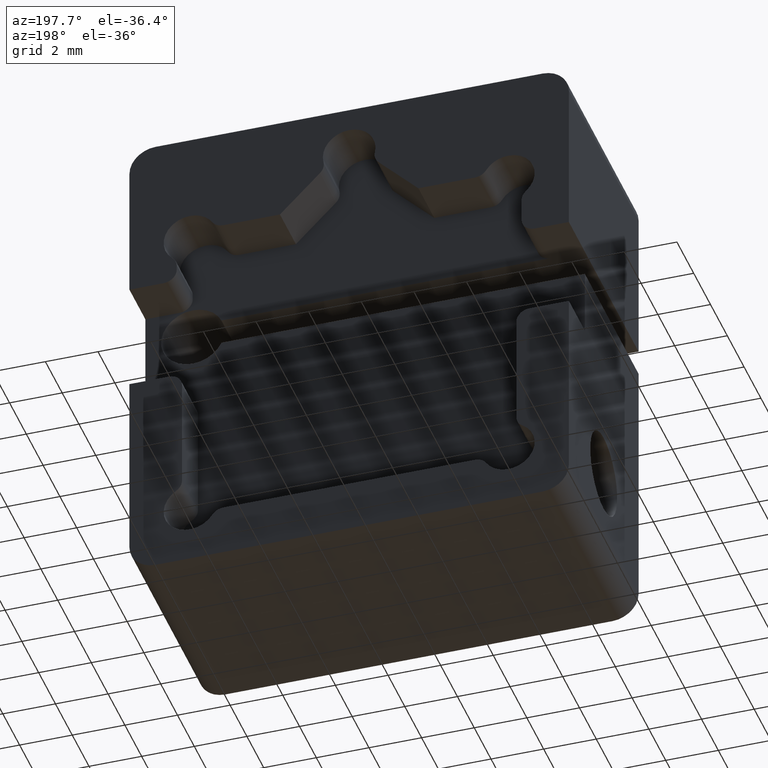
[diagram: clean part render]
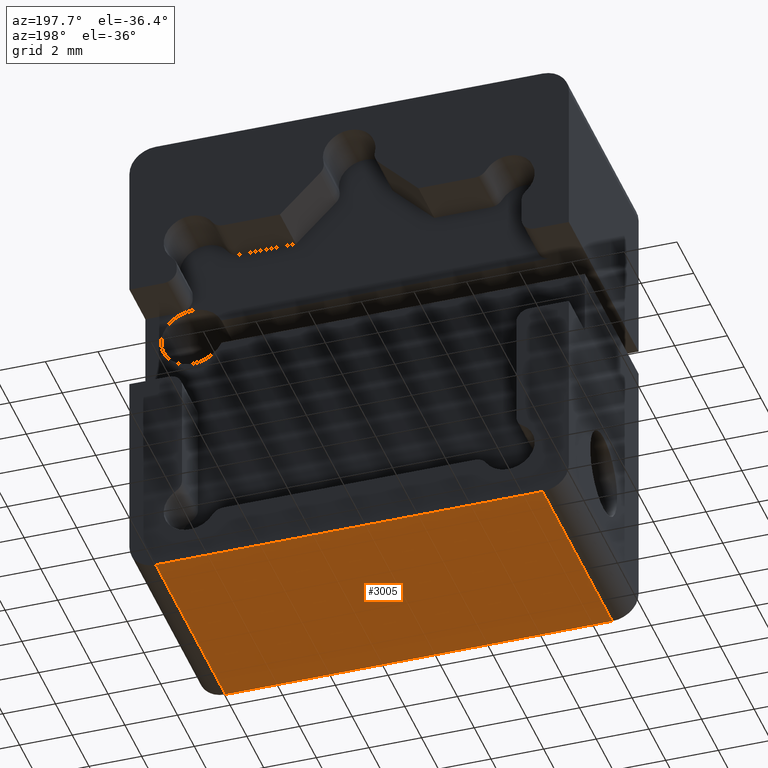
[diagram: same view with one face highlighted and labeled with its STEP entity id]
A machine part, auxiliary view. The second image highlights one B-rep face of the part: STEP entity #3005.
In plain terms, the highlighted planar face has unit normal (0, 0, 1).
Its self-contained STEP definition (entity closure, byte-faithful):
#19 = VERTEX_POINT ( 'NONE', #1463 ) ;
#361 = DIRECTION ( 'NONE',  ( -1.000000000000000000, -0.000000000000000000, -0.000000000000000000 ) ) ;
#365 = PLANE ( 'NONE',  #482 ) ;
#422 = EDGE_CURVE ( 'NONE', #660, #575, #1357, .T. ) ;
#482 = AXIS2_PLACEMENT_3D ( 'NONE', #2726, #792, #2510 ) ;
#504 = EDGE_CURVE ( 'NONE', #2200, #19, #2117, .T. ) ;
#521 = CARTESIAN_POINT ( 'NONE',  ( 7.349999999999995204, 0.000000000000000000, -9.399999999999996803 ) ) ;
#528 = ORIENTED_EDGE ( 'NONE', *, *, #2712, .T. ) ;
#564 = DIRECTION ( 'NONE',  ( -1.000000000000000000, -0.000000000000000000, -0.000000000000000000 ) ) ;
#575 = VERTEX_POINT ( 'NONE', #521 ) ;
#660 = VERTEX_POINT ( 'NONE', #1537 ) ;
#724 = CARTESIAN_POINT ( 'NONE',  ( -7.349999999999999645, 8.300000000000000711, -9.399999999999996803 ) ) ;
#731 = VECTOR ( 'NONE', #361, 1000.000000000000000 ) ;
#792 = DIRECTION ( 'NONE',  ( 0.000000000000000000, 0.000000000000000000, 1.000000000000000000 ) ) ;
#866 = EDGE_LOOP ( 'NONE', ( #528, #2487, #2151, #1067 ) ) ;
#1067 = ORIENTED_EDGE ( 'NONE', *, *, #422, .T. ) ;
#1346 = VECTOR ( 'NONE', #564, 1000.000000000000000 ) ;
#1357 = LINE ( 'NONE', #2060, #2646 ) ;
#1375 = EDGE_CURVE ( 'NONE', #660, #19, #2942, .T. ) ;
#1463 = CARTESIAN_POINT ( 'NONE',  ( -7.349999999999999645, 8.300000000000000711, -9.399999999999996803 ) ) ;
#1537 = CARTESIAN_POINT ( 'NONE',  ( 7.349999999999995204, 8.300000000000000711, -9.399999999999996803 ) ) ;
#1801 = FACE_OUTER_BOUND ( 'NONE', #866, .T. ) ;
#1939 = DIRECTION ( 'NONE',  ( -0.000000000000000000, 1.000000000000000000, -0.000000000000000000 ) ) ;
#2060 = CARTESIAN_POINT ( 'NONE',  ( 7.349999999999995204, 8.300000000000000711, -9.399999999999996803 ) ) ;
#2062 = VECTOR ( 'NONE', #1939, 1000.000000000000000 ) ;
#2117 = LINE ( 'NONE', #724, #2062 ) ;
#2151 = ORIENTED_EDGE ( 'NONE', *, *, #1375, .F. ) ;
#2155 = CARTESIAN_POINT ( 'NONE',  ( -7.349999999999999645, 0.000000000000000000, -9.399999999999996803 ) ) ;
#2200 = VERTEX_POINT ( 'NONE', #2155 ) ;
#2487 = ORIENTED_EDGE ( 'NONE', *, *, #504, .T. ) ;
#2510 = DIRECTION ( 'NONE',  ( 1.000000000000000000, 0.000000000000000000, -0.000000000000000000 ) ) ;
#2646 = VECTOR ( 'NONE', #3007, 1000.000000000000000 ) ;
#2664 = CARTESIAN_POINT ( 'NONE',  ( -8.349999999999999645, 0.000000000000000000, -9.399999999999996803 ) ) ;
#2691 = CARTESIAN_POINT ( 'NONE',  ( -8.349999999999999645, 8.300000000000000711, -9.399999999999996803 ) ) ;
#2702 = LINE ( 'NONE', #2664, #731 ) ;
#2712 = EDGE_CURVE ( 'NONE', #575, #2200, #2702, .T. ) ;
#2726 = CARTESIAN_POINT ( 'NONE',  ( -8.349999999999999645, 8.300000000000000711, -9.399999999999996803 ) ) ;
#2942 = LINE ( 'NONE', #2691, #1346 ) ;
#3005 = ADVANCED_FACE ( 'NONE', ( #1801 ), #365, .F. ) ;
#3007 = DIRECTION ( 'NONE',  ( 0.000000000000000000, -1.000000000000000000, 0.000000000000000000 ) ) ;